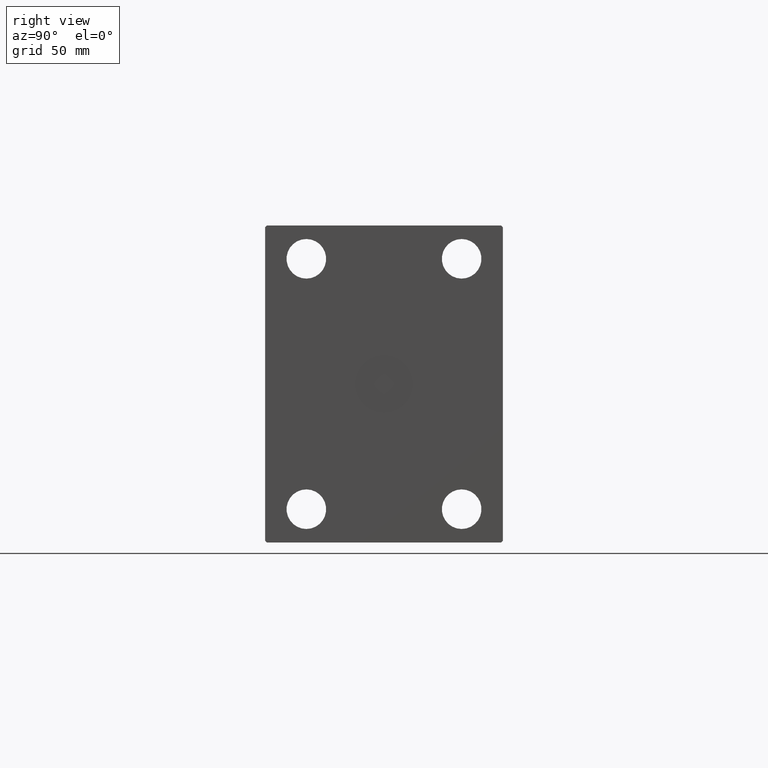
[diagram: clean part render]
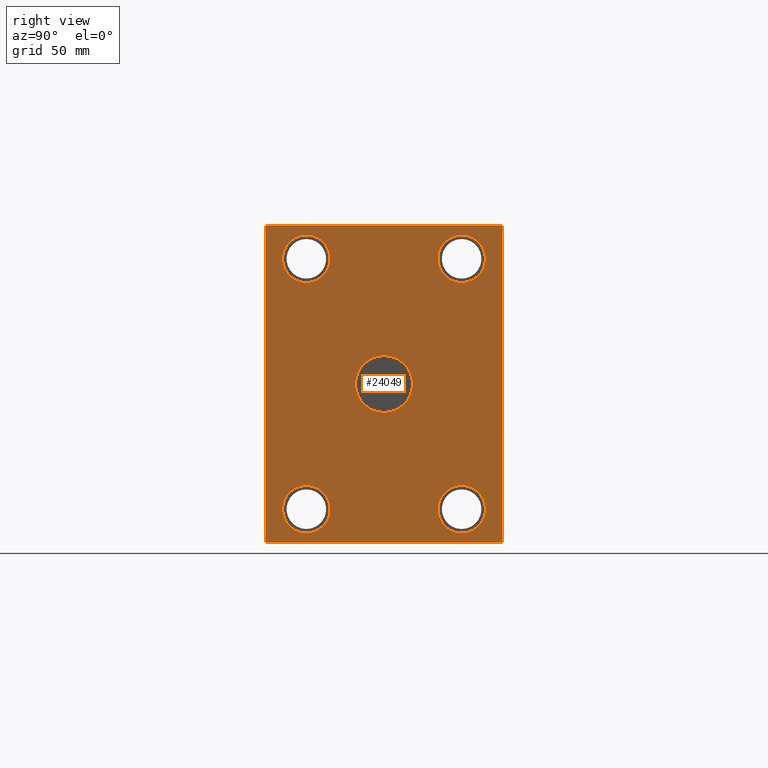
[diagram: same view with one face highlighted and labeled with its STEP entity id]
A machine part, right view. The second image highlights one B-rep face of the part: STEP entity #24049.
In plain terms, the highlighted planar face has unit normal (1, 0, 0).
Its self-contained STEP definition (entity closure, byte-faithful):
#134 = ORIENTED_EDGE ( 'NONE', *, *, #20035, .T. ) ;
#135 = EDGE_CURVE ( 'NONE', #27534, #19294, #31770, .T. ) ;
#164 = PLANE ( 'NONE',  #24591 ) ;
#320 = ORIENTED_EDGE ( 'NONE', *, *, #19227, .T. ) ;
#616 = EDGE_CURVE ( 'NONE', #26919, #13241, #30363, .T. ) ;
#1181 = CARTESIAN_POINT ( 'NONE',  ( 388.0000000000000000, 49.00000000000000711, 64.00000000000001421 ) ) ;
#1938 = CARTESIAN_POINT ( 'NONE',  ( 388.0000000000000000, 0.000000000000000000, 0.000000000000000000 ) ) ;
#2581 = DIRECTION ( 'NONE',  ( 0.000000000000000000, 1.000000000000000000, 0.000000000000000000 ) ) ;
#2636 = VECTOR ( 'NONE', #14733, 1000.000000000000000 ) ;
#2800 = VERTEX_POINT ( 'NONE', #9401 ) ;
#2801 = CARTESIAN_POINT ( 'NONE',  ( 388.0000000000000000, -75.00000000000000000, 98.99999999999994316 ) ) ;
#2895 = DIRECTION ( 'NONE',  ( 0.000000000000000000, 0.000000000000000000, 1.000000000000000000 ) ) ;
#2908 = CARTESIAN_POINT ( 'NONE',  ( 388.0000000000000000, 49.00000000000000711, 79.00000000000001421 ) ) ;
#3001 = CARTESIAN_POINT ( 'NONE',  ( 388.0000000000000000, -75.00000000000000000, 98.99999999999994316 ) ) ;
#3014 = ORIENTED_EDGE ( 'NONE', *, *, #27551, .F. ) ;
#4156 = CARTESIAN_POINT ( 'NONE',  ( 388.0000000000000000, -48.99999999999999289, -79.00000000000001421 ) ) ;
#5050 = EDGE_CURVE ( 'NONE', #19918, #34808, #28409, .T. ) ;
#5941 = LINE ( 'NONE', #31943, #29961 ) ;
#7006 = DIRECTION ( 'NONE',  ( 1.000000000000000000, 0.000000000000000000, 0.000000000000000000 ) ) ;
#7095 = ORIENTED_EDGE ( 'NONE', *, *, #34098, .T. ) ;
#7184 = VERTEX_POINT ( 'NONE', #33936 ) ;
#7215 = ORIENTED_EDGE ( 'NONE', *, *, #30399, .F. ) ;
#7556 = DIRECTION ( 'NONE',  ( 0.000000000000000000, 0.7071067811865474617, 0.7071067811865474617 ) ) ;
#7759 = CARTESIAN_POINT ( 'NONE',  ( 388.0000000000000000, 49.00000000000000711, -79.00000000000001421 ) ) ;
#8002 = LINE ( 'NONE', #14457, #15978 ) ;
#8395 = DIRECTION ( 'NONE',  ( 0.000000000000000000, 0.000000000000000000, 1.000000000000000000 ) ) ;
#8543 = EDGE_LOOP ( 'NONE', ( #18378, #34515 ) ) ;
#8622 = CARTESIAN_POINT ( 'NONE',  ( 388.0000000000000000, -48.99999999999999289, 94.00000000000001421 ) ) ;
#8818 = CARTESIAN_POINT ( 'NONE',  ( 388.0000000000000000, 49.00000000000000711, -64.00000000000001421 ) ) ;
#9291 = VERTEX_POINT ( 'NONE', #22623 ) ;
#9401 = CARTESIAN_POINT ( 'NONE',  ( 388.0000000000000000, -74.00000000000000000, 99.99999999999994316 ) ) ;
#9465 = DIRECTION ( 'NONE',  ( 1.000000000000000000, -0.000000000000000000, -0.000000000000000000 ) ) ;
#9634 = ORIENTED_EDGE ( 'NONE', *, *, #31135, .F. ) ;
#10662 = FACE_BOUND ( 'NONE', #36026, .T. ) ;
#11272 = DIRECTION ( 'NONE',  ( 0.000000000000000000, 0.000000000000000000, 1.000000000000000000 ) ) ;
#11471 = VECTOR ( 'NONE', #2581, 1000.000000000000000 ) ;
#11776 = VERTEX_POINT ( 'NONE', #16606 ) ;
#12275 = DIRECTION ( 'NONE',  ( -1.000000000000000000, -0.000000000000000000, -0.000000000000000000 ) ) ;
#12342 = CIRCLE ( 'NONE', #37726, 15.00000000000000000 ) ;
#12658 = CARTESIAN_POINT ( 'NONE',  ( 388.0000000000000000, -74.00000000000000000, 99.99999999999994316 ) ) ;
#13241 = VERTEX_POINT ( 'NONE', #16591 ) ;
#13242 = CARTESIAN_POINT ( 'NONE',  ( 388.0000000000000000, 0.000000000000000000, 0.000000000000000000 ) ) ;
#13548 = VERTEX_POINT ( 'NONE', #8622 ) ;
#14097 = CARTESIAN_POINT ( 'NONE',  ( 388.0000000000000000, 74.00000000000001421, -100.0000000000000426 ) ) ;
#14243 = CARTESIAN_POINT ( 'NONE',  ( 388.0000000000000000, -48.99999999999999289, -79.00000000000001421 ) ) ;
#14457 = CARTESIAN_POINT ( 'NONE',  ( 388.0000000000000000, 75.00000000000000000, 98.99999999999995737 ) ) ;
#14657 = DIRECTION ( 'NONE',  ( 0.000000000000000000, 0.000000000000000000, -1.000000000000000000 ) ) ;
#14733 = DIRECTION ( 'NONE',  ( 0.000000000000000000, -7.008983741320432232E-17, 1.000000000000000000 ) ) ;
#15035 = DIRECTION ( 'NONE',  ( 1.000000000000000000, 0.000000000000000000, 0.000000000000000000 ) ) ;
#15037 = EDGE_CURVE ( 'NONE', #31692, #9291, #34202, .T. ) ;
#15566 = CARTESIAN_POINT ( 'NONE',  ( 388.0000000000000000, -48.99999999999999289, 79.00000000000001421 ) ) ;
#15671 = CARTESIAN_POINT ( 'NONE',  ( 388.0000000000000000, -73.99999999999998579, -100.0000000000000426 ) ) ;
#15978 = VECTOR ( 'NONE', #27555, 1000.000000000000114 ) ;
#16072 = VERTEX_POINT ( 'NONE', #33318 ) ;
#16124 = DIRECTION ( 'NONE',  ( 0.000000000000000000, 0.000000000000000000, -1.000000000000000000 ) ) ;
#16461 = VERTEX_POINT ( 'NONE', #2801 ) ;
#16591 = CARTESIAN_POINT ( 'NONE',  ( 388.0000000000000000, -48.99999999999999289, -64.00000000000001421 ) ) ;
#16606 = CARTESIAN_POINT ( 'NONE',  ( 388.0000000000000000, 75.00000000000000000, 98.99999999999995737 ) ) ;
#16735 = CARTESIAN_POINT ( 'NONE',  ( 388.0000000000000000, 49.00000000000000711, 79.00000000000001421 ) ) ;
#17133 = DIRECTION ( 'NONE',  ( 0.000000000000000000, 1.401796748264086446E-16, -1.000000000000000000 ) ) ;
#17184 = CARTESIAN_POINT ( 'NONE',  ( 388.0000000000000000, 49.00000000000000711, -94.00000000000001421 ) ) ;
#17649 = EDGE_CURVE ( 'NONE', #37305, #2800, #5941, .T. ) ;
#17669 = ORIENTED_EDGE ( 'NONE', *, *, #616, .F. ) ;
#17777 = CIRCLE ( 'NONE', #39096, 15.00000000000000000 ) ;
#17949 = LINE ( 'NONE', #31057, #2636 ) ;
#18097 = EDGE_CURVE ( 'NONE', #34808, #19918, #35488, .T. ) ;
#18267 = DIRECTION ( 'NONE',  ( 0.000000000000000000, 0.000000000000000000, -1.000000000000000000 ) ) ;
#18290 = DIRECTION ( 'NONE',  ( -1.000000000000000000, -0.000000000000000000, -0.000000000000000000 ) ) ;
#18378 = ORIENTED_EDGE ( 'NONE', *, *, #5050, .T. ) ;
#18583 = DIRECTION ( 'NONE',  ( -1.000000000000000000, -0.000000000000000000, -0.000000000000000000 ) ) ;
#18890 = LINE ( 'NONE', #15671, #11471 ) ;
#19121 = VECTOR ( 'NONE', #24535, 1000.000000000000114 ) ;
#19183 = CIRCLE ( 'NONE', #22617, 15.00000000000000000 ) ;
#19227 = EDGE_CURVE ( 'NONE', #33475, #31692, #18890, .T. ) ;
#19294 = VERTEX_POINT ( 'NONE', #35861 ) ;
#19780 = CARTESIAN_POINT ( 'NONE',  ( 388.0000000000000000, 49.00000000000000711, 94.00000000000001421 ) ) ;
#19788 = CIRCLE ( 'NONE', #28714, 15.00000000000000000 ) ;
#19918 = VERTEX_POINT ( 'NONE', #17184 ) ;
#20035 = EDGE_CURVE ( 'NONE', #2800, #16461, #42098, .T. ) ;
#20222 = ORIENTED_EDGE ( 'NONE', *, *, #23177, .T. ) ;
#20294 = EDGE_LOOP ( 'NONE', ( #27496, #41474, #134, #23855, #20222, #320, #36843, #29891 ) ) ;
#20369 = AXIS2_PLACEMENT_3D ( 'NONE', #7759, #18290, #8395 ) ;
#20538 = CARTESIAN_POINT ( 'NONE',  ( 388.0000000000000000, -48.99999999999999289, -94.00000000000001421 ) ) ;
#21096 = DIRECTION ( 'NONE',  ( 1.000000000000000000, -0.000000000000000000, -0.000000000000000000 ) ) ;
#21207 = AXIS2_PLACEMENT_3D ( 'NONE', #34603, #30354, #18267 ) ;
#21662 = VECTOR ( 'NONE', #7556, 1000.000000000000114 ) ;
#21806 = CARTESIAN_POINT ( 'NONE',  ( 388.0000000000000000, -48.99999999999999289, 79.00000000000001421 ) ) ;
#21854 = EDGE_CURVE ( 'NONE', #9291, #11776, #17949, .T. ) ;
#21902 = DIRECTION ( 'NONE',  ( 0.000000000000000000, -0.7071067811865474617, -0.7071067811865474617 ) ) ;
#22617 = AXIS2_PLACEMENT_3D ( 'NONE', #2908, #28887, #35774 ) ;
#22623 = CARTESIAN_POINT ( 'NONE',  ( 388.0000000000000000, 75.00000000000001421, -99.00000000000004263 ) ) ;
#23025 = ORIENTED_EDGE ( 'NONE', *, *, #28476, .T. ) ;
#23177 = EDGE_CURVE ( 'NONE', #7184, #33475, #27971, .T. ) ;
#23269 = CIRCLE ( 'NONE', #21207, 18.00000000000000000 ) ;
#23334 = FACE_BOUND ( 'NONE', #39568, .T. ) ;
#23757 = FACE_OUTER_BOUND ( 'NONE', #20294, .T. ) ;
#23855 = ORIENTED_EDGE ( 'NONE', *, *, #28956, .T. ) ;
#24049 = ADVANCED_FACE ( 'NONE', ( #10662, #29577, #29992, #23757, #23334, #36448 ), #164, .T. ) ;
#24535 = DIRECTION ( 'NONE',  ( 0.000000000000000000, 0.7071067811865474617, -0.7071067811865474617 ) ) ;
#24591 = AXIS2_PLACEMENT_3D ( 'NONE', #13242, #7006, #26353 ) ;
#25578 = CARTESIAN_POINT ( 'NONE',  ( 388.0000000000000000, 0.000000000000000000, -18.00000000000000000 ) ) ;
#25597 = AXIS2_PLACEMENT_3D ( 'NONE', #1938, #15035, #28127 ) ;
#25990 = CIRCLE ( 'NONE', #30079, 15.00000000000000000 ) ;
#26353 = DIRECTION ( 'NONE',  ( 0.000000000000000000, 0.000000000000000000, -1.000000000000000000 ) ) ;
#26439 = ORIENTED_EDGE ( 'NONE', *, *, #135, .F. ) ;
#26919 = VERTEX_POINT ( 'NONE', #20538 ) ;
#27496 = ORIENTED_EDGE ( 'NONE', *, *, #35352, .T. ) ;
#27534 = VERTEX_POINT ( 'NONE', #25578 ) ;
#27551 = EDGE_CURVE ( 'NONE', #38994, #38282, #25990, .T. ) ;
#27555 = DIRECTION ( 'NONE',  ( 0.000000000000000000, -0.7071067811865474617, 0.7071067811865474617 ) ) ;
#27971 = LINE ( 'NONE', #41533, #19121 ) ;
#28127 = DIRECTION ( 'NONE',  ( 0.000000000000000000, 0.000000000000000000, -1.000000000000000000 ) ) ;
#28409 = CIRCLE ( 'NONE', #37326, 15.00000000000000000 ) ;
#28476 = EDGE_CURVE ( 'NONE', #16072, #13548, #19788, .T. ) ;
#28663 = DIRECTION ( 'NONE',  ( -1.000000000000000000, -0.000000000000000000, -0.000000000000000000 ) ) ;
#28714 = AXIS2_PLACEMENT_3D ( 'NONE', #15566, #28663, #2895 ) ;
#28887 = DIRECTION ( 'NONE',  ( 1.000000000000000000, -0.000000000000000000, -0.000000000000000000 ) ) ;
#28956 = EDGE_CURVE ( 'NONE', #16461, #7184, #32427, .T. ) ;
#29183 = CARTESIAN_POINT ( 'NONE',  ( 388.0000000000000000, -73.99999999999998579, -100.0000000000000426 ) ) ;
#29577 = FACE_BOUND ( 'NONE', #41208, .T. ) ;
#29891 = ORIENTED_EDGE ( 'NONE', *, *, #21854, .T. ) ;
#29961 = VECTOR ( 'NONE', #42030, 1000.000000000000000 ) ;
#29992 = FACE_BOUND ( 'NONE', #8543, .T. ) ;
#30079 = AXIS2_PLACEMENT_3D ( 'NONE', #16735, #9465, #16124 ) ;
#30140 = DIRECTION ( 'NONE',  ( 1.000000000000000000, -0.000000000000000000, -0.000000000000000000 ) ) ;
#30217 = EDGE_CURVE ( 'NONE', #38282, #38994, #19183, .T. ) ;
#30354 = DIRECTION ( 'NONE',  ( 1.000000000000000000, 0.000000000000000000, 0.000000000000000000 ) ) ;
#30363 = CIRCLE ( 'NONE', #41365, 15.00000000000000000 ) ;
#30399 = EDGE_CURVE ( 'NONE', #13241, #26919, #17777, .T. ) ;
#31057 = CARTESIAN_POINT ( 'NONE',  ( 388.0000000000000000, 75.00000000000001421, -99.00000000000004263 ) ) ;
#31135 = EDGE_CURVE ( 'NONE', #19294, #27534, #23269, .T. ) ;
#31180 = CARTESIAN_POINT ( 'NONE',  ( 388.0000000000000000, 49.00000000000000711, -79.00000000000001421 ) ) ;
#31622 = DIRECTION ( 'NONE',  ( 0.000000000000000000, 0.000000000000000000, 1.000000000000000000 ) ) ;
#31692 = VERTEX_POINT ( 'NONE', #14097 ) ;
#31770 = CIRCLE ( 'NONE', #25597, 18.00000000000000000 ) ;
#31943 = CARTESIAN_POINT ( 'NONE',  ( 388.0000000000000000, 74.00000000000000000, 99.99999999999995737 ) ) ;
#32427 = LINE ( 'NONE', #3001, #34919 ) ;
#33318 = CARTESIAN_POINT ( 'NONE',  ( 388.0000000000000000, -48.99999999999999289, 64.00000000000001421 ) ) ;
#33475 = VERTEX_POINT ( 'NONE', #29183 ) ;
#33936 = CARTESIAN_POINT ( 'NONE',  ( 388.0000000000000000, -74.99999999999997158, -99.00000000000005684 ) ) ;
#34098 = EDGE_CURVE ( 'NONE', #13548, #16072, #12342, .T. ) ;
#34202 = LINE ( 'NONE', #40435, #21662 ) ;
#34217 = DIRECTION ( 'NONE',  ( 0.000000000000000000, 0.000000000000000000, -1.000000000000000000 ) ) ;
#34515 = ORIENTED_EDGE ( 'NONE', *, *, #18097, .T. ) ;
#34603 = CARTESIAN_POINT ( 'NONE',  ( 388.0000000000000000, 0.000000000000000000, 0.000000000000000000 ) ) ;
#34808 = VERTEX_POINT ( 'NONE', #8818 ) ;
#34826 = ORIENTED_EDGE ( 'NONE', *, *, #30217, .F. ) ;
#34919 = VECTOR ( 'NONE', #17133, 1000.000000000000000 ) ;
#35352 = EDGE_CURVE ( 'NONE', #11776, #37305, #8002, .T. ) ;
#35488 = CIRCLE ( 'NONE', #20369, 15.00000000000000000 ) ;
#35774 = DIRECTION ( 'NONE',  ( 0.000000000000000000, 0.000000000000000000, -1.000000000000000000 ) ) ;
#35861 = CARTESIAN_POINT ( 'NONE',  ( 388.0000000000000000, 2.204364238465235428E-15, 18.00000000000000000 ) ) ;
#36026 = EDGE_LOOP ( 'NONE', ( #26439, #9634 ) ) ;
#36448 = FACE_BOUND ( 'NONE', #41786, .T. ) ;
#36843 = ORIENTED_EDGE ( 'NONE', *, *, #15037, .T. ) ;
#37305 = VERTEX_POINT ( 'NONE', #39632 ) ;
#37326 = AXIS2_PLACEMENT_3D ( 'NONE', #31180, #12275, #31622 ) ;
#37726 = AXIS2_PLACEMENT_3D ( 'NONE', #21806, #18583, #11272 ) ;
#38282 = VERTEX_POINT ( 'NONE', #1181 ) ;
#38994 = VERTEX_POINT ( 'NONE', #19780 ) ;
#39096 = AXIS2_PLACEMENT_3D ( 'NONE', #14243, #21096, #14657 ) ;
#39568 = EDGE_LOOP ( 'NONE', ( #17669, #7215 ) ) ;
#39602 = VECTOR ( 'NONE', #21902, 1000.000000000000114 ) ;
#39632 = CARTESIAN_POINT ( 'NONE',  ( 388.0000000000000000, 74.00000000000000000, 99.99999999999995737 ) ) ;
#40435 = CARTESIAN_POINT ( 'NONE',  ( 388.0000000000000000, 74.00000000000001421, -100.0000000000000426 ) ) ;
#41208 = EDGE_LOOP ( 'NONE', ( #23025, #7095 ) ) ;
#41365 = AXIS2_PLACEMENT_3D ( 'NONE', #4156, #30140, #34217 ) ;
#41474 = ORIENTED_EDGE ( 'NONE', *, *, #17649, .T. ) ;
#41533 = CARTESIAN_POINT ( 'NONE',  ( 388.0000000000000000, -74.99999999999997158, -99.00000000000005684 ) ) ;
#41786 = EDGE_LOOP ( 'NONE', ( #34826, #3014 ) ) ;
#42030 = DIRECTION ( 'NONE',  ( 0.000000000000000000, -1.000000000000000000, -9.376883653928687363E-17 ) ) ;
#42098 = LINE ( 'NONE', #12658, #39602 ) ;